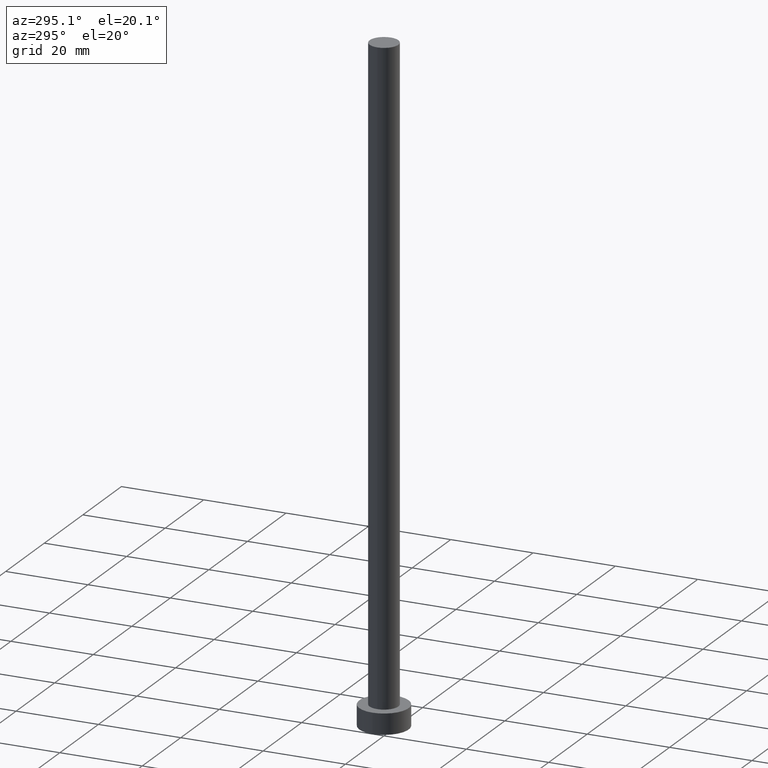
[diagram: clean part render]
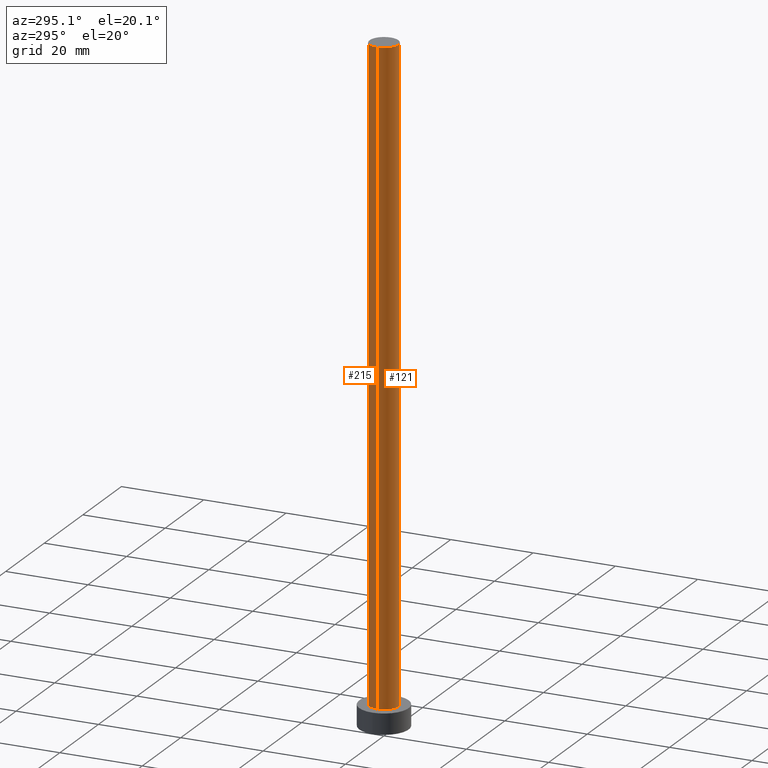
[diagram: same view with one multi-face feature highlighted, each face labeled with its STEP entity id]
A machine part, auxiliary view. The highlighted faces form ONE feature: a constant-radius fillet chain: 2 tangent blend faces with common blend radius 3.5 mm. The faces share edges in the B-rep.
Their STEP definitions:
[1] entity #215 (Cylinder):
#10 = VECTOR ( 'NONE', #252, 1000.000000000000000 ) ;
#13 = CARTESIAN_POINT ( 'NONE',  ( -3.500000000000000000, 0.000000000000000000, 160.0000000000000000 ) ) ;
#37 = CARTESIAN_POINT ( 'NONE',  ( 0.000000000000000000, 0.000000000000000000, 5.000000000000000000 ) ) ;
#44 = CARTESIAN_POINT ( 'NONE',  ( -3.500000000000000000, 0.000000000000000000, 160.0000000000000000 ) ) ;
#58 = DIRECTION ( 'NONE',  ( 1.000000000000000000, 0.000000000000000000, 0.000000000000000000 ) ) ;
#62 = DIRECTION ( 'NONE',  ( 0.000000000000000000, 0.000000000000000000, 1.000000000000000000 ) ) ;
#72 = CARTESIAN_POINT ( 'NONE',  ( 3.500000000000000000, 4.286263797015736595E-16, 5.000000000000000000 ) ) ;
#74 = VERTEX_POINT ( 'NONE', #180 ) ;
#78 = DIRECTION ( 'NONE',  ( 0.000000000000000000, 0.000000000000000000, 1.000000000000000000 ) ) ;
#81 = CARTESIAN_POINT ( 'NONE',  ( 3.500000000000000000, 4.286263797015736595E-16, 160.0000000000000000 ) ) ;
#91 = EDGE_CURVE ( 'NONE', #219, #243, #104, .T. ) ;
#96 = CARTESIAN_POINT ( 'NONE',  ( -3.500000000000000000, 0.000000000000000000, 5.000000000000000000 ) ) ;
#98 = EDGE_CURVE ( 'NONE', #74, #170, #161, .T. ) ;
#102 = AXIS2_PLACEMENT_3D ( 'NONE', #37, #78, #210 ) ;
#104 = LINE ( 'NONE', #44, #10 ) ;
#108 = AXIS2_PLACEMENT_3D ( 'NONE', #118, #188, #250 ) ;
#118 = CARTESIAN_POINT ( 'NONE',  ( 0.000000000000000000, 0.000000000000000000, 160.0000000000000000 ) ) ;
#119 = CIRCLE ( 'NONE', #102, 3.500000000000000000 ) ;
#140 = FACE_OUTER_BOUND ( 'NONE', #235, .T. ) ;
#151 = ORIENTED_EDGE ( 'NONE', *, *, #98, .T. ) ;
#159 = AXIS2_PLACEMENT_3D ( 'NONE', #227, #62, #58 ) ;
#161 = LINE ( 'NONE', #81, #213 ) ;
#170 = VERTEX_POINT ( 'NONE', #72 ) ;
#180 = CARTESIAN_POINT ( 'NONE',  ( 3.500000000000000000, 4.286263797015736595E-16, 160.0000000000000000 ) ) ;
#188 = DIRECTION ( 'NONE',  ( -0.000000000000000000, -0.000000000000000000, -1.000000000000000000 ) ) ;
#206 = ORIENTED_EDGE ( 'NONE', *, *, #242, .F. ) ;
#209 = CYLINDRICAL_SURFACE ( 'NONE', #108, 3.500000000000000000 ) ;
#210 = DIRECTION ( 'NONE',  ( 1.000000000000000000, 0.000000000000000000, 0.000000000000000000 ) ) ;
#213 = VECTOR ( 'NONE', #231, 1000.000000000000000 ) ;
#215 = ADVANCED_FACE ( 'NONE', ( #140 ), #209, .T. ) ;
#219 = VERTEX_POINT ( 'NONE', #13 ) ;
#221 = ORIENTED_EDGE ( 'NONE', *, *, #91, .F. ) ;
#222 = CIRCLE ( 'NONE', #159, 3.500000000000000000 ) ;
#227 = CARTESIAN_POINT ( 'NONE',  ( 0.000000000000000000, 0.000000000000000000, 160.0000000000000000 ) ) ;
#231 = DIRECTION ( 'NONE',  ( -0.000000000000000000, -0.000000000000000000, -1.000000000000000000 ) ) ;
#235 = EDGE_LOOP ( 'NONE', ( #206, #151, #239, #221 ) ) ;
#237 = EDGE_CURVE ( 'NONE', #170, #243, #119, .T. ) ;
#239 = ORIENTED_EDGE ( 'NONE', *, *, #237, .T. ) ;
#242 = EDGE_CURVE ( 'NONE', #74, #219, #222, .T. ) ;
#243 = VERTEX_POINT ( 'NONE', #96 ) ;
#250 = DIRECTION ( 'NONE',  ( -1.000000000000000000, 0.000000000000000000, 0.000000000000000000 ) ) ;
#252 = DIRECTION ( 'NONE',  ( -0.000000000000000000, -0.000000000000000000, -1.000000000000000000 ) ) ;
[2] entity #121 (Cylinder):
#3 = EDGE_CURVE ( 'NONE', #219, #74, #107, .T. ) ;
#10 = VECTOR ( 'NONE', #252, 1000.000000000000000 ) ;
#11 = ORIENTED_EDGE ( 'NONE', *, *, #98, .F. ) ;
#13 = CARTESIAN_POINT ( 'NONE',  ( -3.500000000000000000, 0.000000000000000000, 160.0000000000000000 ) ) ;
#32 = EDGE_LOOP ( 'NONE', ( #11, #69, #136, #131 ) ) ;
#44 = CARTESIAN_POINT ( 'NONE',  ( -3.500000000000000000, 0.000000000000000000, 160.0000000000000000 ) ) ;
#53 = CARTESIAN_POINT ( 'NONE',  ( 0.000000000000000000, 0.000000000000000000, 160.0000000000000000 ) ) ;
#60 = CIRCLE ( 'NONE', #236, 3.500000000000000000 ) ;
#61 = CARTESIAN_POINT ( 'NONE',  ( 0.000000000000000000, 0.000000000000000000, 5.000000000000000000 ) ) ;
#69 = ORIENTED_EDGE ( 'NONE', *, *, #3, .F. ) ;
#70 = FACE_OUTER_BOUND ( 'NONE', #32, .T. ) ;
#72 = CARTESIAN_POINT ( 'NONE',  ( 3.500000000000000000, 4.286263797015736595E-16, 5.000000000000000000 ) ) ;
#74 = VERTEX_POINT ( 'NONE', #180 ) ;
#77 = DIRECTION ( 'NONE',  ( 0.000000000000000000, 0.000000000000000000, 1.000000000000000000 ) ) ;
#81 = CARTESIAN_POINT ( 'NONE',  ( 3.500000000000000000, 4.286263797015736595E-16, 160.0000000000000000 ) ) ;
#91 = EDGE_CURVE ( 'NONE', #219, #243, #104, .T. ) ;
#93 = DIRECTION ( 'NONE',  ( -1.000000000000000000, 0.000000000000000000, 0.000000000000000000 ) ) ;
#96 = CARTESIAN_POINT ( 'NONE',  ( -3.500000000000000000, 0.000000000000000000, 5.000000000000000000 ) ) ;
#98 = EDGE_CURVE ( 'NONE', #74, #170, #161, .T. ) ;
#104 = LINE ( 'NONE', #44, #10 ) ;
#107 = CIRCLE ( 'NONE', #160, 3.500000000000000000 ) ;
#121 = ADVANCED_FACE ( 'NONE', ( #70 ), #220, .T. ) ;
#131 = ORIENTED_EDGE ( 'NONE', *, *, #193, .T. ) ;
#133 = DIRECTION ( 'NONE',  ( -0.000000000000000000, -0.000000000000000000, -1.000000000000000000 ) ) ;
#136 = ORIENTED_EDGE ( 'NONE', *, *, #91, .T. ) ;
#160 = AXIS2_PLACEMENT_3D ( 'NONE', #171, #200, #217 ) ;
#161 = LINE ( 'NONE', #81, #213 ) ;
#170 = VERTEX_POINT ( 'NONE', #72 ) ;
#171 = CARTESIAN_POINT ( 'NONE',  ( 0.000000000000000000, 0.000000000000000000, 160.0000000000000000 ) ) ;
#180 = CARTESIAN_POINT ( 'NONE',  ( 3.500000000000000000, 4.286263797015736595E-16, 160.0000000000000000 ) ) ;
#189 = AXIS2_PLACEMENT_3D ( 'NONE', #53, #133, #93 ) ;
#193 = EDGE_CURVE ( 'NONE', #243, #170, #60, .T. ) ;
#200 = DIRECTION ( 'NONE',  ( 0.000000000000000000, 0.000000000000000000, 1.000000000000000000 ) ) ;
#213 = VECTOR ( 'NONE', #231, 1000.000000000000000 ) ;
#217 = DIRECTION ( 'NONE',  ( 1.000000000000000000, 0.000000000000000000, 0.000000000000000000 ) ) ;
#219 = VERTEX_POINT ( 'NONE', #13 ) ;
#220 = CYLINDRICAL_SURFACE ( 'NONE', #189, 3.500000000000000000 ) ;
#229 = DIRECTION ( 'NONE',  ( 1.000000000000000000, 0.000000000000000000, 0.000000000000000000 ) ) ;
#231 = DIRECTION ( 'NONE',  ( -0.000000000000000000, -0.000000000000000000, -1.000000000000000000 ) ) ;
#236 = AXIS2_PLACEMENT_3D ( 'NONE', #61, #77, #229 ) ;
#243 = VERTEX_POINT ( 'NONE', #96 ) ;
#252 = DIRECTION ( 'NONE',  ( -0.000000000000000000, -0.000000000000000000, -1.000000000000000000 ) ) ;